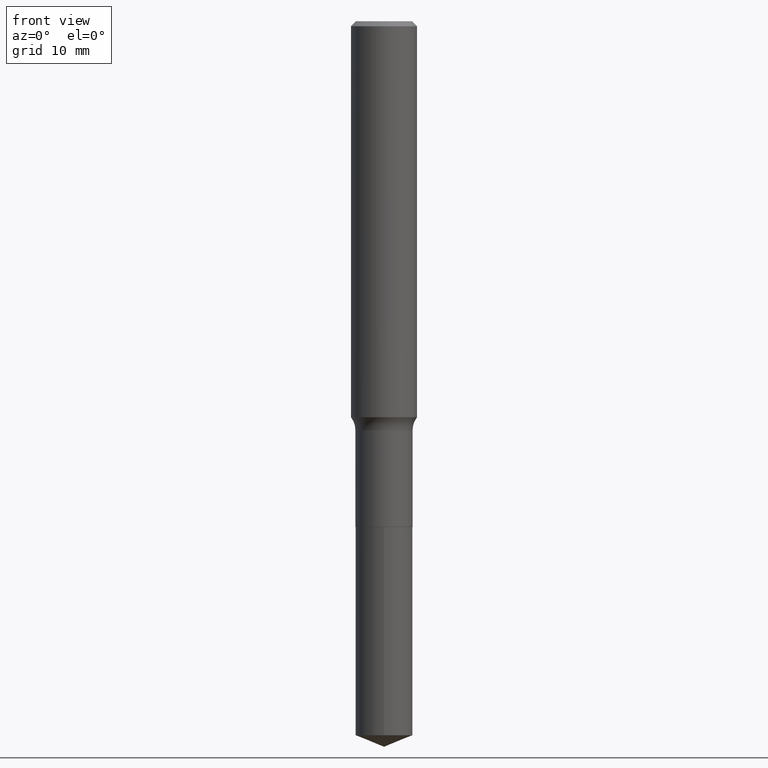
[diagram: clean part render]
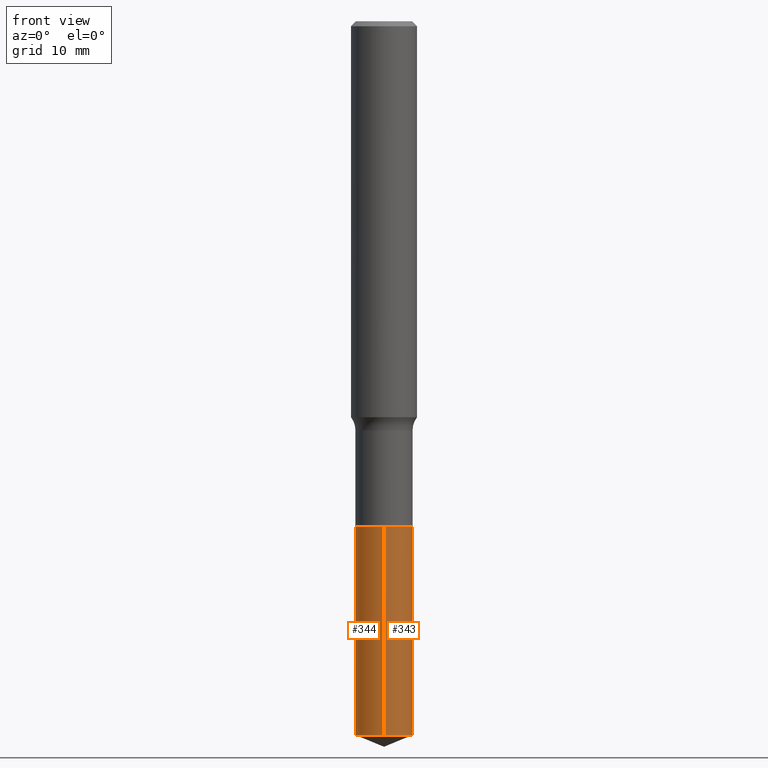
[diagram: same view with one multi-face feature highlighted, each face labeled with its STEP entity id]
A machine part, front view. The highlighted faces form ONE feature: a constant-radius fillet chain: 2 tangent blend faces with common blend radius 2.5997 mm. The faces share edges in the B-rep.
Their STEP definitions:
[1] entity #344 (Cylinder):
#2 = DIRECTION ( 'NONE',  ( -2.431437355357483089E-29, 3.511575175048929728E-15, 1.000000000000000000 ) ) ;
#12 = AXIS2_PLACEMENT_3D ( 'NONE', #14, #54, #157 ) ;
#14 = CARTESIAN_POINT ( 'NONE',  ( 4.428744008001282238E-29, -6.323072704644935995E-15, -1.810999999999999943 ) ) ;
#17 = CYLINDRICAL_SURFACE ( 'NONE', #12, 0.1023499999999999965 ) ;
#34 = CARTESIAN_POINT ( 'NONE',  ( 6.242712779329400961E-29, -8.942876045115246072E-15, -2.557047915785771508 ) ) ;
#48 = CIRCLE ( 'NONE', #319, 0.1023499999999999965 ) ;
#54 = DIRECTION ( 'NONE',  ( -2.431437355357483089E-29, 3.511575175048930123E-15, 1.000000000000000000 ) ) ;
#58 = DIRECTION ( 'NONE',  ( -6.982962677686265922E-15, -1.000000000000000000, 2.669123589315352370E-15 ) ) ;
#72 = ORIENTED_EDGE ( 'NONE', *, *, #446, .T. ) ;
#76 = EDGE_CURVE ( 'NONE', #79, #116, #48, .T. ) ;
#79 = VERTEX_POINT ( 'NONE', #130 ) ;
#81 = VERTEX_POINT ( 'NONE', #362 ) ;
#110 = VECTOR ( 'NONE', #298, 39.37007874015748143 ) ;
#116 = VERTEX_POINT ( 'NONE', #453 ) ;
#130 = CARTESIAN_POINT ( 'NONE',  ( 7.272404900505251315E-16, 0.1023499999999936821, -1.811000000000000165 ) ) ;
#139 = LINE ( 'NONE', #219, #110 ) ;
#141 = CIRCLE ( 'NONE', #251, 0.1023500000000000243 ) ;
#155 = ORIENTED_EDGE ( 'NONE', *, *, #76, .F. ) ;
#157 = DIRECTION ( 'NONE',  ( -6.982962677686265922E-15, -1.000000000000000000, 2.669123589315352370E-15 ) ) ;
#172 = EDGE_CURVE ( 'NONE', #455, #116, #486, .T. ) ;
#203 = DIRECTION ( 'NONE',  ( -2.431437355357483089E-29, 3.511575175048930123E-15, 1.000000000000000000 ) ) ;
#219 = CARTESIAN_POINT ( 'NONE',  ( 7.272404900505066918E-16, 0.1023499999999936821, -1.811000000000000165 ) ) ;
#231 = ORIENTED_EDGE ( 'NONE', *, *, #172, .T. ) ;
#251 = AXIS2_PLACEMENT_3D ( 'NONE', #34, #290, #450 ) ;
#258 = ORIENTED_EDGE ( 'NONE', *, *, #434, .F. ) ;
#290 = DIRECTION ( 'NONE',  ( -2.431437355357483089E-29, 3.511575175048930123E-15, 1.000000000000000000 ) ) ;
#298 = DIRECTION ( 'NONE',  ( -2.431437355357483089E-29, 3.511575175048929728E-15, 1.000000000000000000 ) ) ;
#310 = CARTESIAN_POINT ( 'NONE',  ( -7.147062300611273721E-16, -0.1023500000000090032, -2.557047915785771064 ) ) ;
#311 = EDGE_LOOP ( 'NONE', ( #258, #72, #231, #155 ) ) ;
#319 = AXIS2_PLACEMENT_3D ( 'NONE', #396, #203, #58 ) ;
#335 = VECTOR ( 'NONE', #2, 39.37007874015748143 ) ;
#344 = ADVANCED_FACE ( 'NONE', ( #351 ), #17, .T. ) ;
#351 = FACE_OUTER_BOUND ( 'NONE', #311, .T. ) ;
#362 = CARTESIAN_POINT ( 'NONE',  ( 7.272404900505251315E-16, 0.1023499999999911009, -2.557047915785771952 ) ) ;
#396 = CARTESIAN_POINT ( 'NONE',  ( 4.428744008001282238E-29, -6.323072704644935995E-15, -1.810999999999999943 ) ) ;
#434 = EDGE_CURVE ( 'NONE', #81, #79, #139, .T. ) ;
#445 = CARTESIAN_POINT ( 'NONE',  ( -7.147062300611450228E-16, -0.1023500000000063248, -1.810999999999999721 ) ) ;
#446 = EDGE_CURVE ( 'NONE', #81, #455, #141, .T. ) ;
#450 = DIRECTION ( 'NONE',  ( -6.982962677686265133E-15, -1.000000000000000000, 5.338247178630703951E-15 ) ) ;
#453 = CARTESIAN_POINT ( 'NONE',  ( -7.147062300611450228E-16, -0.1023500000000063248, -1.810999999999999721 ) ) ;
#455 = VERTEX_POINT ( 'NONE', #310 ) ;
#486 = LINE ( 'NONE', #445, #335 ) ;
[2] entity #343 (Cylinder):
#2 = DIRECTION ( 'NONE',  ( -2.431437355357483089E-29, 3.511575175048929728E-15, 1.000000000000000000 ) ) ;
#4 = CIRCLE ( 'NONE', #60, 0.1023500000000000243 ) ;
#20 = FACE_OUTER_BOUND ( 'NONE', #32, .T. ) ;
#24 = DIRECTION ( 'NONE',  ( -6.982962677686265133E-15, -1.000000000000000000, 5.338247178630703951E-15 ) ) ;
#32 = EDGE_LOOP ( 'NONE', ( #331, #409, #224, #433 ) ) ;
#60 = AXIS2_PLACEMENT_3D ( 'NONE', #466, #447, #24 ) ;
#71 = EDGE_CURVE ( 'NONE', #116, #79, #232, .T. ) ;
#79 = VERTEX_POINT ( 'NONE', #130 ) ;
#81 = VERTEX_POINT ( 'NONE', #362 ) ;
#110 = VECTOR ( 'NONE', #298, 39.37007874015748143 ) ;
#116 = VERTEX_POINT ( 'NONE', #453 ) ;
#130 = CARTESIAN_POINT ( 'NONE',  ( 7.272404900505251315E-16, 0.1023499999999936821, -1.811000000000000165 ) ) ;
#139 = LINE ( 'NONE', #219, #110 ) ;
#172 = EDGE_CURVE ( 'NONE', #455, #116, #486, .T. ) ;
#207 = AXIS2_PLACEMENT_3D ( 'NONE', #464, #394, #432 ) ;
#219 = CARTESIAN_POINT ( 'NONE',  ( 7.272404900505066918E-16, 0.1023499999999936821, -1.811000000000000165 ) ) ;
#224 = ORIENTED_EDGE ( 'NONE', *, *, #71, .F. ) ;
#232 = CIRCLE ( 'NONE', #250, 0.1023499999999999965 ) ;
#241 = CYLINDRICAL_SURFACE ( 'NONE', #207, 0.1023499999999999965 ) ;
#250 = AXIS2_PLACEMENT_3D ( 'NONE', #438, #276, #321 ) ;
#276 = DIRECTION ( 'NONE',  ( -2.431437355357483089E-29, 3.511575175048930123E-15, 1.000000000000000000 ) ) ;
#298 = DIRECTION ( 'NONE',  ( -2.431437355357483089E-29, 3.511575175048929728E-15, 1.000000000000000000 ) ) ;
#310 = CARTESIAN_POINT ( 'NONE',  ( -7.147062300611273721E-16, -0.1023500000000090032, -2.557047915785771064 ) ) ;
#321 = DIRECTION ( 'NONE',  ( -6.982962677686265922E-15, -1.000000000000000000, 2.669123589315352370E-15 ) ) ;
#331 = ORIENTED_EDGE ( 'NONE', *, *, #358, .T. ) ;
#335 = VECTOR ( 'NONE', #2, 39.37007874015748143 ) ;
#343 = ADVANCED_FACE ( 'NONE', ( #20 ), #241, .T. ) ;
#358 = EDGE_CURVE ( 'NONE', #455, #81, #4, .T. ) ;
#362 = CARTESIAN_POINT ( 'NONE',  ( 7.272404900505251315E-16, 0.1023499999999911009, -2.557047915785771952 ) ) ;
#394 = DIRECTION ( 'NONE',  ( -2.431437355357483089E-29, 3.511575175048930123E-15, 1.000000000000000000 ) ) ;
#409 = ORIENTED_EDGE ( 'NONE', *, *, #434, .T. ) ;
#432 = DIRECTION ( 'NONE',  ( -6.982962677686265922E-15, -1.000000000000000000, 2.669123589315352370E-15 ) ) ;
#433 = ORIENTED_EDGE ( 'NONE', *, *, #172, .F. ) ;
#434 = EDGE_CURVE ( 'NONE', #81, #79, #139, .T. ) ;
#438 = CARTESIAN_POINT ( 'NONE',  ( 4.428744008001282238E-29, -6.323072704644935995E-15, -1.810999999999999943 ) ) ;
#445 = CARTESIAN_POINT ( 'NONE',  ( -7.147062300611450228E-16, -0.1023500000000063248, -1.810999999999999721 ) ) ;
#447 = DIRECTION ( 'NONE',  ( -2.431437355357483089E-29, 3.511575175048930123E-15, 1.000000000000000000 ) ) ;
#453 = CARTESIAN_POINT ( 'NONE',  ( -7.147062300611450228E-16, -0.1023500000000063248, -1.810999999999999721 ) ) ;
#455 = VERTEX_POINT ( 'NONE', #310 ) ;
#464 = CARTESIAN_POINT ( 'NONE',  ( 4.428744008001282238E-29, -6.323072704644935995E-15, -1.810999999999999943 ) ) ;
#466 = CARTESIAN_POINT ( 'NONE',  ( 6.242712779329400961E-29, -8.942876045115246072E-15, -2.557047915785771508 ) ) ;
#486 = LINE ( 'NONE', #445, #335 ) ;